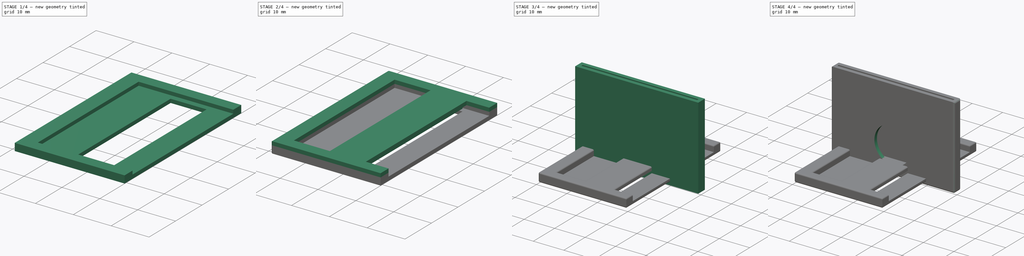
[diagram: build sequence overview — one tinted view per stage of 4, left to right]
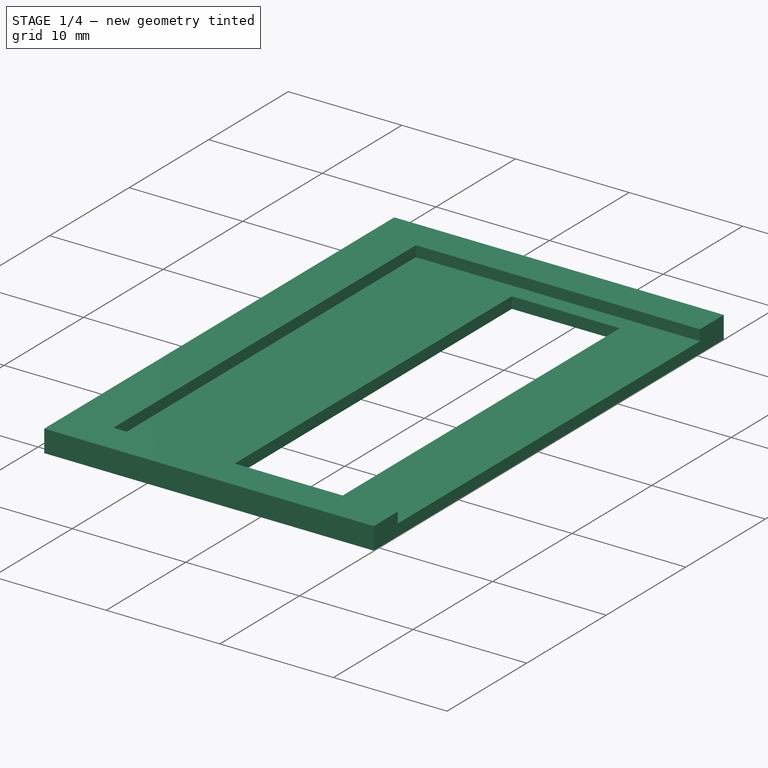
[diagram: stage 1 of 4 — iso view after this stage's code; geometry added in this stage tinted green]
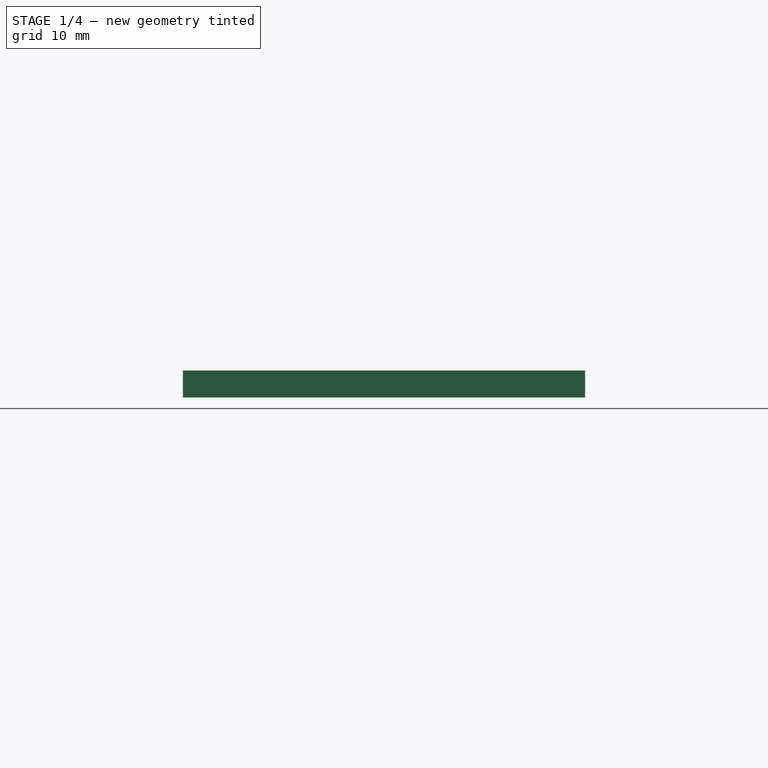
[diagram: stage 1 of 4 — front view after this stage's code; geometry added in this stage tinted green]
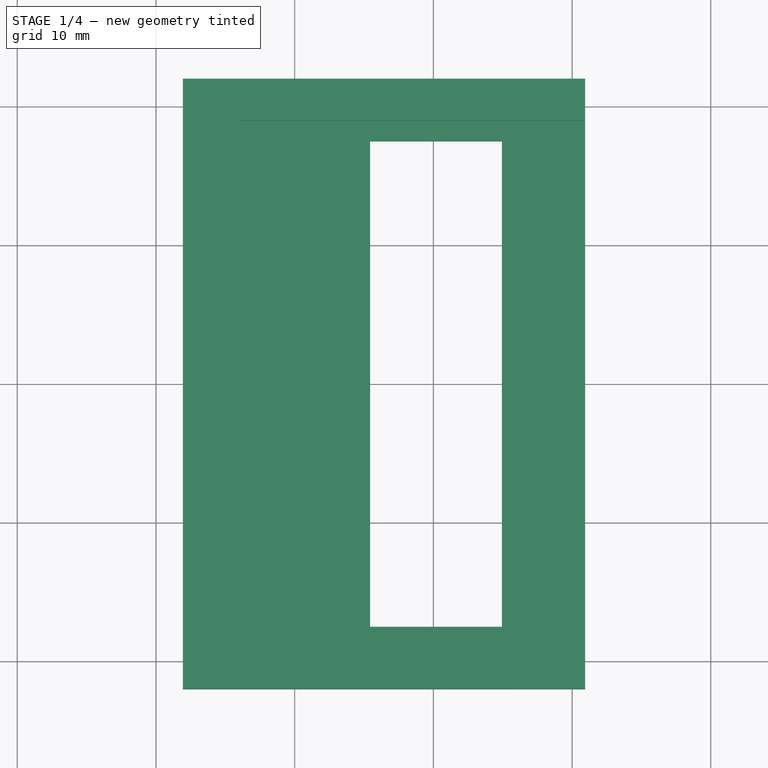
[diagram: stage 1 of 4 — top view after this stage's code; geometry added in this stage tinted green]
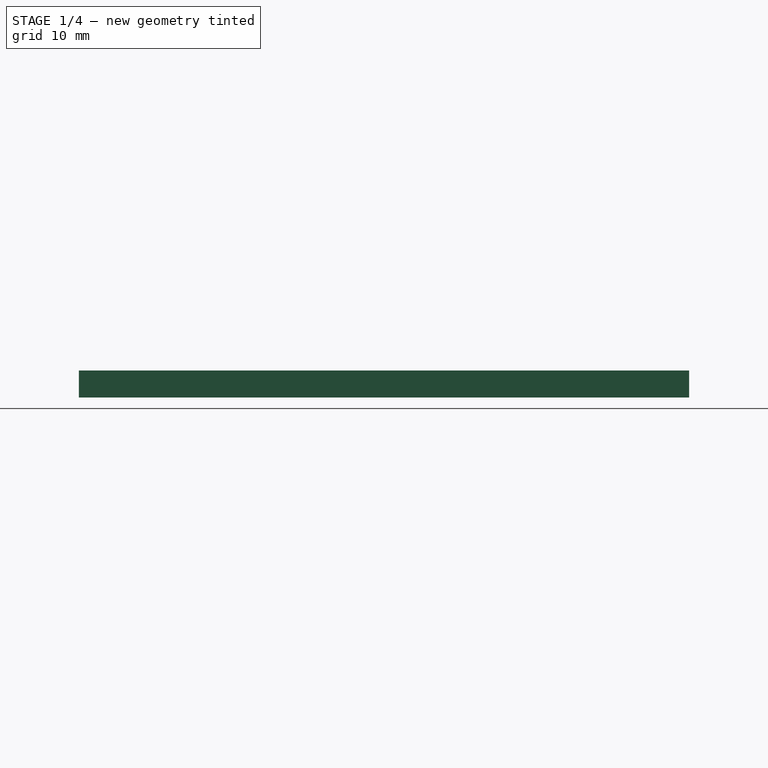
[diagram: stage 1 of 4 — right view after this stage's code; geometry added in this stage tinted green]
FCSTD DOCUMENT  (FreeCAD 0.20R27319 (Git))
Label: Chisel Protector
License: All rights reserved
LicenseURL: http://en.wikipedia.org/wiki/All_rights_reserved
objects: Sketcher::SketchObject×7, PartDesign::Pad×6, PartDesign::Fillet×3, PartDesign::Body×2, Spreadsheet::Sheet×1, PartDesign::Pocket×1
note: 29 computed .brp shape members not serialized (recipe doc carries the construction recipe); baked Part::Feature solids carry a one-line shape summary decoded from their .brp

FEATURE [Sketcher::SketchObject] Sketch001
  FullyConstrained = false
  MapMode = 5
  Support = -> [XY_Plane]
  expr: Constraints[23] = Spreadsheet.Width + 1
  expr: Constraints[24] = Spreadsheet.Width + 1 + 2 * 3
  sketch-geometry (10):
    g0: LineSegment StartX=-14.0603 StartY=19 StartZ=0 EndX=10.9397 EndY=19 EndZ=0
    g1: LineSegment StartX=10.9397 StartY=19 StartZ=0 EndX=10.9397 EndY=-19 EndZ=0
    g2: LineSegment StartX=10.9397 StartY=-19 StartZ=0 EndX=-14.0603 EndY=-19 EndZ=0
    g3: LineSegment StartX=-14.0603 StartY=-19 StartZ=0 EndX=-14.0603 EndY=19 EndZ=0
    g4: LineSegment StartX=-18.0603 StartY=22 StartZ=0 EndX=-18.0603 EndY=-22 EndZ=0
    g5: LineSegment StartX=-18.0603 StartY=-22 StartZ=0 EndX=10.9397 EndY=-22 EndZ=0
    g6: LineSegment StartX=10.9397 StartY=22 StartZ=0 EndX=-18.0603 EndY=22 EndZ=0
    g7: GeomPoint X=0 Y=0 Z=0
    g8: LineSegment StartX=10.9397 StartY=22 StartZ=0 EndX=10.9397 EndY=19 EndZ=0
    g9: LineSegment StartX=10.9397 StartY=-22 StartZ=0 EndX=10.9397 EndY=-19 EndZ=0
  constraints (26):
    c: Coincident(g0,g1)
    c: Coincident(g1,g2)
    c: Coincident(g2,g3)
    c: Coincident(g3,g0)
    c: Horizontal(g0)
    c: Horizontal(g2)
    c: Vertical(g1)
    c: Vertical(g3)
    c: Coincident(g4,g5)
    c: Coincident(g6,g4)
    c: Horizontal(g5)
    c: Horizontal(g6)
    c: Vertical(g4)
    c: Coincident(g7,g-1)
    c: PointOnObject(g6,g1)
    c: Symmetric(g6,g5,g-1)
    c: Coincident(g8,g6)
    c: Coincident(g8,g0)
    c: Coincident(g9,g5)
    c: Coincident(g9,g2)
    c: Equal(g8,g9)
    c: Distance(g0) = 25
    c: DistanceX(g4,g2) = 4
    c: DistanceY(g2,g0) = 38
    c: DistanceY(g5,g6) = 44
    c: Distance(g8) = 3
FEATURE [Spreadsheet::Sheet] Spreadsheet
  cells = A1=Width; B1(Width)=37; A2=Thickness; B2(Thickness)=0.7; B8=3.1; C8=4.8; B9=8.1; C9=3.3; D9=done; B10=12; C10=2.8; D10=done; B11=18; C11=3.6; D11=done; B12=38; C12=3.6; D12=done
FEATURE [PartDesign::Pad] Pad
  Direction = (0,0,1)
  Length = 0.95
  Length2 = 10
  Profile = -> Sketch001
  ReferenceAxis = -> Sketch001 [N_Axis]
  Type = 0
  expr: Length = Spreadsheet.Thickness + 0.25
FEATURE [Sketcher::SketchObject] Sketch003
  ExternalGeometry = -> [Pad]
  FullyConstrained = true
  MapMode = 5
  Placement = pos=(0,0,0) rot=(1,0,0;3.14159rad)
  Support = -> [Pad]
  expr: Constraints[18] = Spreadsheet.Width - 2
  sketch-geometry (8):
    g0: LineSegment StartX=10.9397 StartY=22 StartZ=0 EndX=-18.0603 EndY=22 EndZ=0
    g1: LineSegment StartX=-18.0603 StartY=22 StartZ=0 EndX=-18.0603 EndY=-22 EndZ=0
    g2: LineSegment StartX=-18.0603 StartY=-22 StartZ=0 EndX=10.9397 EndY=-22 EndZ=0
    g3: LineSegment StartX=10.9397 StartY=-22 StartZ=0 EndX=10.9397 EndY=22 EndZ=0
    g4: LineSegment StartX=-4.56026 StartY=17.5 StartZ=0 EndX=-4.56026 EndY=-17.5 EndZ=0
    g5: LineSegment StartX=4.93974 StartY=17.5 StartZ=0 EndX=4.93974 EndY=-17.5 EndZ=0
    g6: LineSegment StartX=-4.56026 StartY=17.5 StartZ=0 EndX=4.93974 EndY=17.5 EndZ=0
    g7: LineSegment StartX=-4.56026 StartY=-17.5 StartZ=0 EndX=4.93974 EndY=-17.5 EndZ=0
  constraints (21):
    c: Coincident(g1,g2)
    c: Coincident(g3,g0)
    c: Horizontal(g0)
    c: Horizontal(g2)
    c: Vertical(g1)
    c: Vertical(g3)
    c: Coincident(g0,g-3)
    c: Coincident(g1,g-4)
    c: Vertical(g5)
    c: Coincident(g2,g3)
    c: Coincident(g0,g1)
    c: Coincident(g4,g6)
    c: Coincident(g7,g4)
    c: Coincident(g6,g5)
    c: Coincident(g7,g5)
    c: Symmetric(g4,g4,g-1)
    c: Horizontal(g6)
    c: Horizontal(g7)
    c: Distance(g4) = 35
    c: Distance(g6) = 9.5
    c: DistanceX(g5,g0) = 6
FEATURE [PartDesign::Pad] Pad001
  BaseFeature = -> Pad
  Direction = (0,0,-1)
  Length = 1
  Length2 = 10
  Profile = -> Sketch003
  ReferenceAxis = -> Sketch003 [N_Axis]
  Type = 0
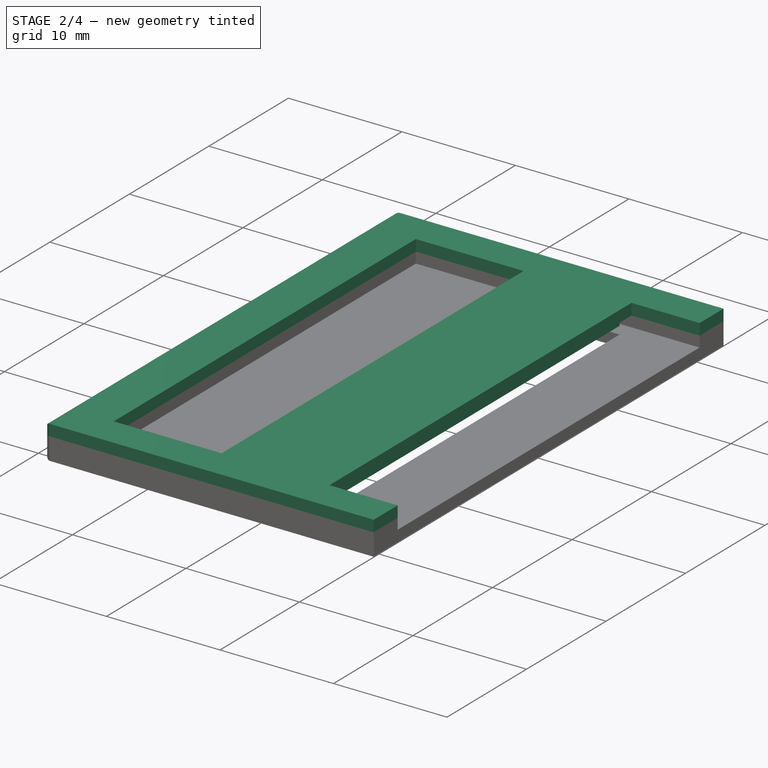
[diagram: stage 2 of 4 — iso view after this stage's code; geometry added in this stage tinted green]
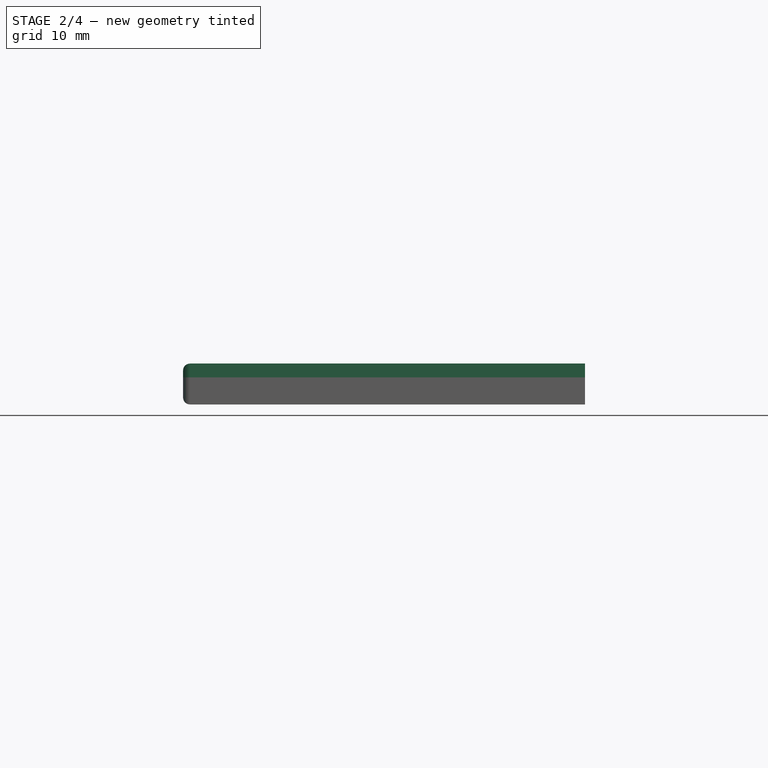
[diagram: stage 2 of 4 — front view after this stage's code; geometry added in this stage tinted green]
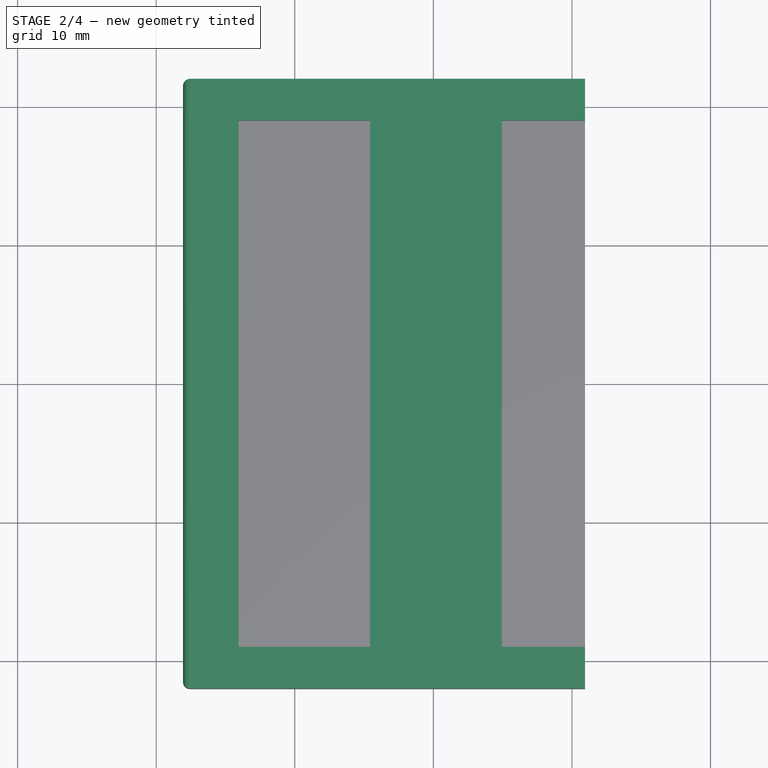
[diagram: stage 2 of 4 — top view after this stage's code; geometry added in this stage tinted green]
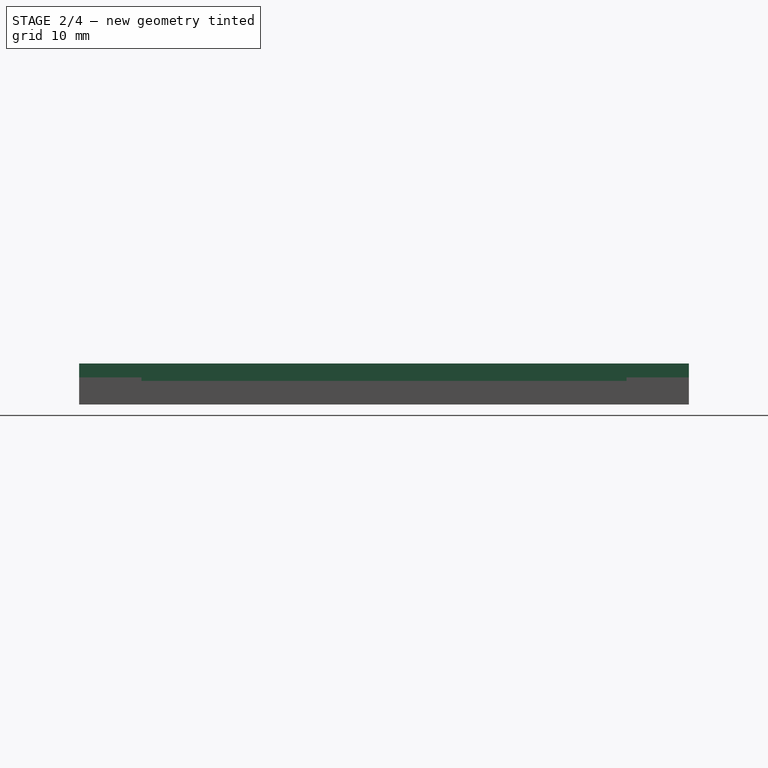
[diagram: stage 2 of 4 — right view after this stage's code; geometry added in this stage tinted green]
FEATURE [Sketcher::SketchObject] Sketch
  ExternalGeometry = -> [Pad001]
  FullyConstrained = true
  MapMode = 5
  Placement = pos=(0,0,0.95) rot=(0,0,1;0rad)
  Support = -> [Pad001]
  sketch-geometry (12):
    g0: LineSegment StartX=10.9397 StartY=19 StartZ=0 EndX=10.9397 EndY=22 EndZ=0
    g1: LineSegment StartX=-18.0603 StartY=22 StartZ=0 EndX=-18.0603 EndY=-22 EndZ=0
    g2: LineSegment StartX=10.9397 StartY=-22 StartZ=0 EndX=10.9397 EndY=-19 EndZ=0
    g3: LineSegment StartX=-14.0603 StartY=19 StartZ=0 EndX=-4.56026 EndY=19 EndZ=0
    g4: LineSegment StartX=-4.56026 StartY=19 StartZ=0 EndX=-4.56026 EndY=-19 EndZ=0
    g5: LineSegment StartX=-4.56026 StartY=-19 StartZ=0 EndX=-14.0603 EndY=-19 EndZ=0
    g6: LineSegment StartX=-14.0603 StartY=-19 StartZ=0 EndX=-14.0603 EndY=19 EndZ=0
    g7: LineSegment StartX=10.9397 StartY=19 StartZ=0 EndX=4.93974 EndY=19 EndZ=0
    g8: LineSegment StartX=4.93974 StartY=-19 StartZ=0 EndX=10.9397 EndY=-19 EndZ=0
    g9: LineSegment StartX=4.93974 StartY=-19 StartZ=0 EndX=4.93974 EndY=19 EndZ=0
    g10: LineSegment StartX=-18.0603 StartY=22 StartZ=0 EndX=10.9397 EndY=22 EndZ=0
    g11: LineSegment StartX=-18.0603 StartY=-22 StartZ=0 EndX=10.9397 EndY=-22 EndZ=0
  constraints (29):
    c: Coincident(g0,g-7)
    c: Coincident(g0,g-3)
    c: Coincident(g1,g-4)
    c: Coincident(g1,g-5)
    c: Coincident(g2,g-5)
    c: Coincident(g2,g-8)
    c: Coincident(g3,g4)
    c: Coincident(g4,g5)
    c: Coincident(g5,g6)
    c: Coincident(g6,g3)
    c: Horizontal(g3)
    c: Horizontal(g5)
    c: Vertical(g4)
    c: Vertical(g6)
    c: Coincident(g3,g-7)
    c: PointOnObject(g4,g-8)
    c: Coincident(g7,g0)
    c: PointOnObject(g7,g-7)
    c: PointOnObject(g8,g-8)
    c: Coincident(g8,g2)
    c: Coincident(g9,g8)
    c: Coincident(g9,g7)
    c: Vertical(g9)
    c: Coincident(g10,g1)
    c: Coincident(g10,g0)
    c: Coincident(g11,g1)
    c: Coincident(g11,g2)
    c: Vertical(g3,g-10)
    c: Vertical(g-9,g7)
FEATURE [PartDesign::Pad] Pad002
  BaseFeature = -> Pad001
  Direction = (0,0,1)
  Length = 1
  Length2 = 10
  Profile = -> Sketch
  ReferenceAxis = -> Sketch [N_Axis]
  Type = 0
FEATURE [Sketcher::SketchObject] Sketch004
  ExternalGeometry = -> [Pad002]
  FullyConstrained = true
  MapMode = 5
  Placement = pos=(0,0,0.95) rot=(1,0,0;3.14159rad)
  Support = -> [Pad002]
  sketch-geometry (4):
    g0: LineSegment StartX=-4.56026 StartY=17.5 StartZ=0 EndX=4.93974 EndY=17.5 EndZ=0
    g1: LineSegment StartX=4.93974 StartY=-17.5 StartZ=0 EndX=-4.56026 EndY=-17.5 EndZ=0
    g2: LineSegment StartX=-4.56026 StartY=-17.5 StartZ=0 EndX=-4.56026 EndY=17.5 EndZ=0
    g3: LineSegment StartX=4.93974 StartY=17.5 StartZ=0 EndX=4.93974 EndY=-17.5 EndZ=0
  constraints (9):
    c: Coincident(g1,g2)
    c: Coincident(g2,g0)
    c: Horizontal(g1)
    c: Vertical(g2)
    c: Coincident(g0,g-3)
    c: Coincident(g0,g-3)
    c: Symmetric(g0,g1,g-1)
    c: Coincident(g3,g0)
    c: Coincident(g3,g1)
FEATURE [PartDesign::Pad] Pad003
  BaseFeature = -> Pad002
  Direction = (0,0,-1)
  Length = 0.25
  Length2 = 10
  Profile = -> Sketch004
  ReferenceAxis = -> Sketch004 [N_Axis]
  Type = 0
FEATURE [PartDesign::Body] Body001  label="Protector V2"
  Group = -> [Sketch005,Pad004,Sketch006,Pad005,Sketch007,Pocket,Fillet]
  Origin = -> Origin001
  Tip = -> Fillet
FEATURE [PartDesign::Fillet] Fillet001
  Base = -> Pad003 [Face10,Face3,Face11]
  BaseFeature = -> Pad003
  Radius = 0.5
  SupportTransform = false
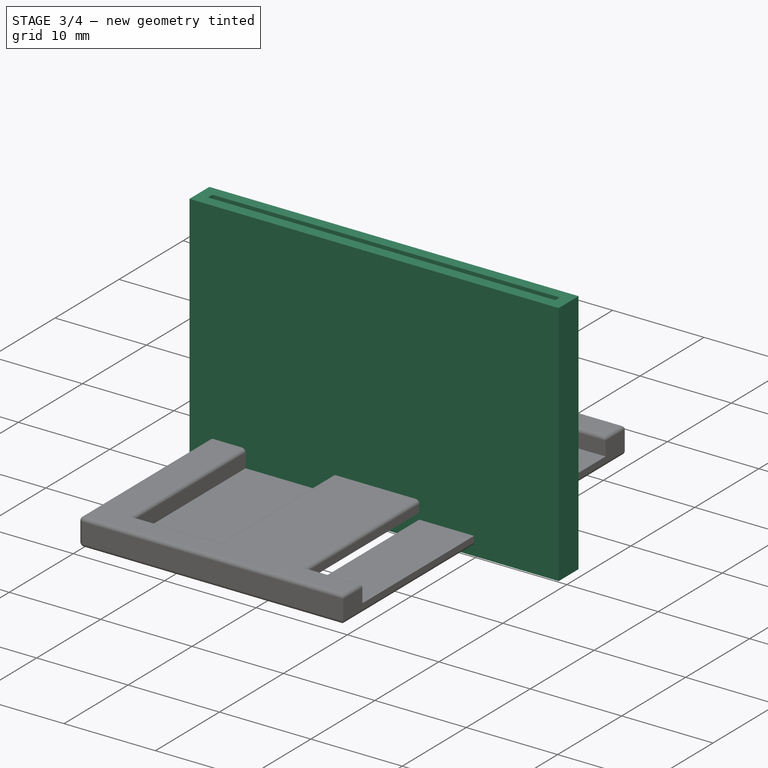
[diagram: stage 3 of 4 — iso view after this stage's code; geometry added in this stage tinted green]
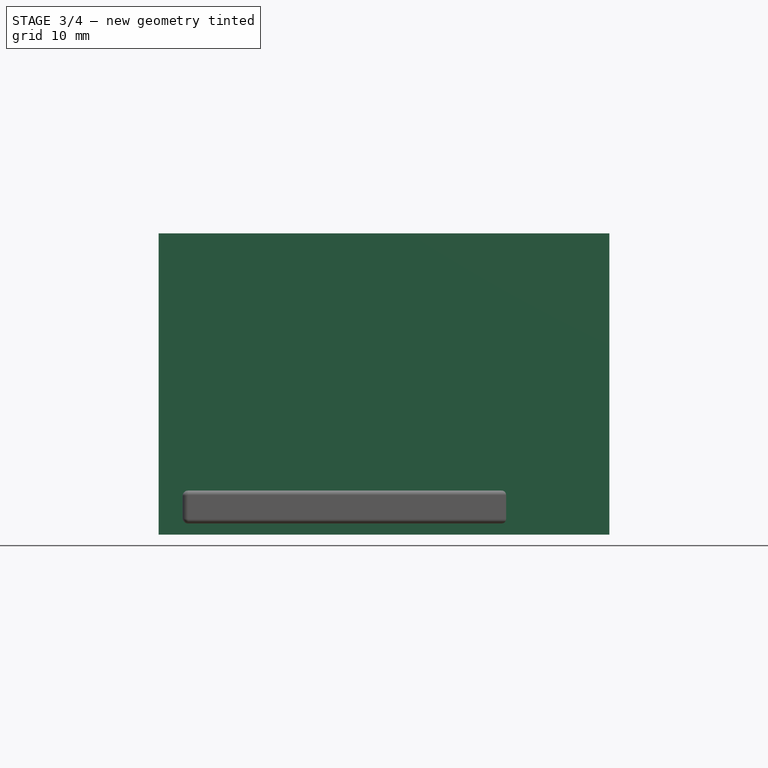
[diagram: stage 3 of 4 — front view after this stage's code; geometry added in this stage tinted green]
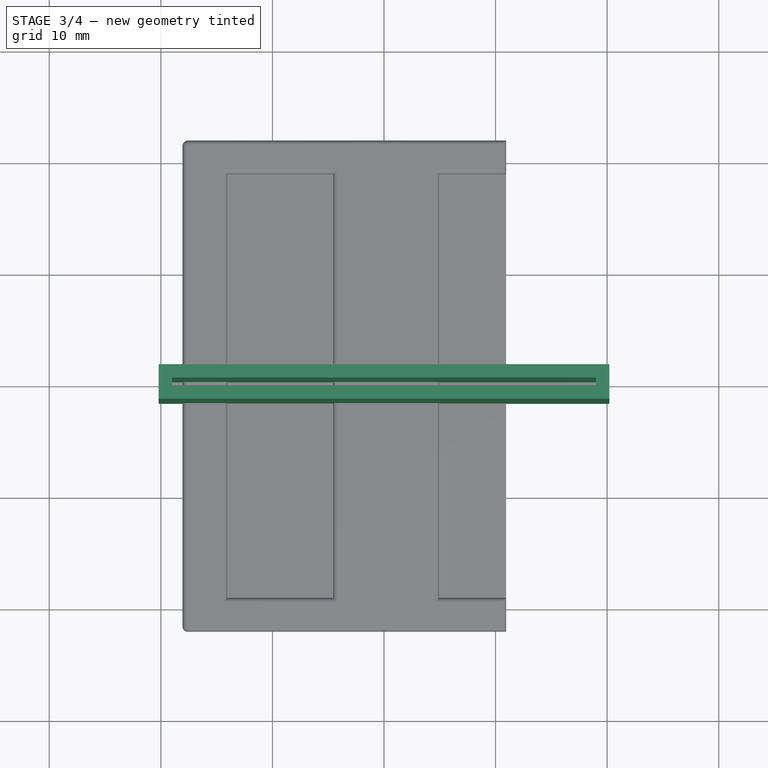
[diagram: stage 3 of 4 — top view after this stage's code; geometry added in this stage tinted green]
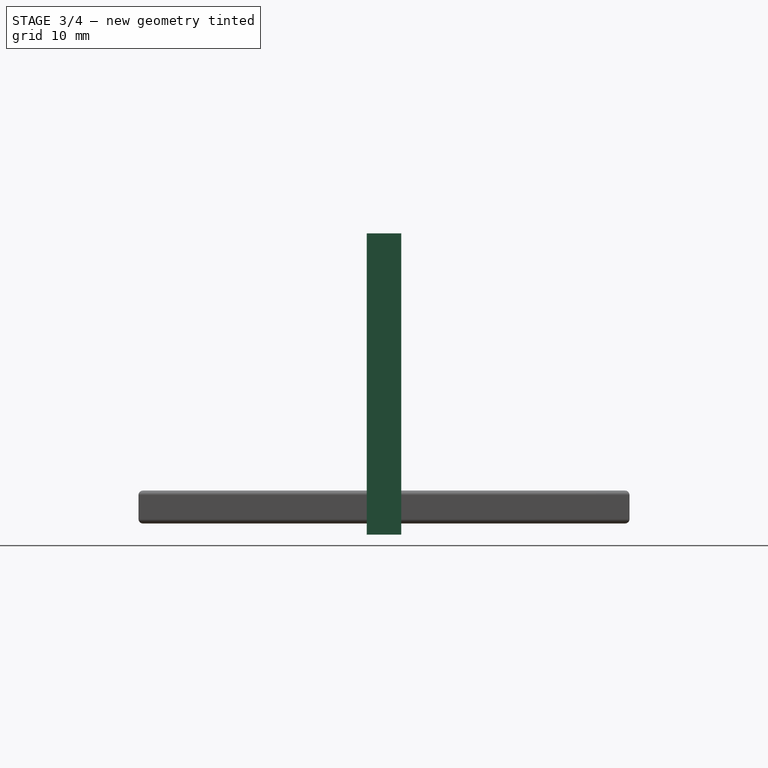
[diagram: stage 3 of 4 — right view after this stage's code; geometry added in this stage tinted green]
FEATURE [Sketcher::SketchObject] Sketch005
  FullyConstrained = true
  MapMode = 5
  Support = -> [XY_Plane001]
  expr: Constraints[10] = Spreadsheet.Thickness
  expr: Constraints[11] = Spreadsheet.Width + 1
  sketch-geometry (10):
    g0: LineSegment StartX=-19 StartY=0.35 StartZ=0 EndX=-19 EndY=-0.35 EndZ=0
    g1: LineSegment StartX=-19 StartY=-0.35 StartZ=0 EndX=19 EndY=-0.35 EndZ=0
    g2: LineSegment StartX=19 StartY=-0.35 StartZ=0 EndX=19 EndY=0.35 EndZ=0
    g3: LineSegment StartX=19 StartY=0.35 StartZ=0 EndX=-19 EndY=0.35 EndZ=0
    g4: GeomPoint X=0 Y=0 Z=0
    g5: LineSegment StartX=-20.2 StartY=1.55 StartZ=0 EndX=-20.2 EndY=-1.55 EndZ=0
    g6: LineSegment StartX=-20.2 StartY=-1.55 StartZ=0 EndX=20.2 EndY=-1.55 EndZ=0
    g7: LineSegment StartX=20.2 StartY=-1.55 StartZ=0 EndX=20.2 EndY=1.55 EndZ=0
    g8: LineSegment StartX=20.2 StartY=1.55 StartZ=0 EndX=-20.2 EndY=1.55 EndZ=0
    g9: GeomPoint X=0 Y=0 Z=0
  constraints (24):
    c: Coincident(g0,g1)
    c: Coincident(g1,g2)
    c: Coincident(g2,g3)
    c: Coincident(g3,g0)
    c: Horizontal(g1)
    c: Horizontal(g3)
    c: Vertical(g0)
    c: Vertical(g2)
    c: Symmetric(g1,g0,g4)
    c: Coincident(g4,g-1)
    c: Distance(g0) = 0.7
    c: Distance(g3) = 38
    c: Coincident(g5,g6)
    c: Coincident(g6,g7)
    c: Coincident(g7,g8)
    c: Coincident(g8,g5)
    c: Horizontal(g6)
    c: Horizontal(g8)
    c: Vertical(g5)
    c: Vertical(g7)
    c: Symmetric(g6,g5,g9)
    c: Coincident(g9,g4)
    c: DistanceY(g6,g1) = 1.2
    c: DistanceX(g1,g6) = 1.2
FEATURE [PartDesign::Pad] Pad004
  Direction = (0,0,1)
  Length = 25
  Length2 = 10
  Profile = -> Sketch005
  ReferenceAxis = -> Sketch005 [N_Axis]
  Type = 0
FEATURE [Sketcher::SketchObject] Sketch006
  ExternalGeometry = -> [Pad004]
  FullyConstrained = true
  MapMode = 5
  Placement = pos=(0,0,0) rot=(1,0,0;3.14159rad)
  Support = -> [Pad004]
  sketch-geometry (4):
    g0: LineSegment StartX=-20.2 StartY=1.55 StartZ=0 EndX=20.2 EndY=1.55 EndZ=0
    g1: LineSegment StartX=20.2 StartY=1.55 StartZ=0 EndX=20.2 EndY=-1.55 EndZ=0
    g2: LineSegment StartX=20.2 StartY=-1.55 StartZ=0 EndX=-20.2 EndY=-1.55 EndZ=0
    g3: LineSegment StartX=-20.2 StartY=-1.55 StartZ=0 EndX=-20.2 EndY=1.55 EndZ=0
  constraints (10):
    c: Coincident(g0,g1)
    c: Coincident(g1,g2)
    c: Coincident(g2,g3)
    c: Coincident(g3,g0)
    c: Horizontal(g0)
    c: Horizontal(g2)
    c: Vertical(g1)
    c: Vertical(g3)
    c: Coincident(g0,g-3)
    c: Coincident(g1,g-4)
FEATURE [PartDesign::Pad] Pad005
  BaseFeature = -> Pad004
  Direction = (0,0,-1)
  Length = 2
  Length2 = 10
  Profile = -> Sketch006
  ReferenceAxis = -> Sketch006 [N_Axis]
  Type = 0
FEATURE [PartDesign::Fillet] Fillet002
  Base = -> Fillet001 [Face13,Face8]
  BaseFeature = -> Fillet001
  Radius = 0.4
  SupportTransform = false
FEATURE [PartDesign::Body] Body  label="Protector V1"
  Group = -> [Sketch001,Pad,Sketch003,Pad001,Sketch,Pad002,Sketch004,Pad003,Fillet001,Fillet002]
  Origin = -> Origin
  Tip = -> Fillet002
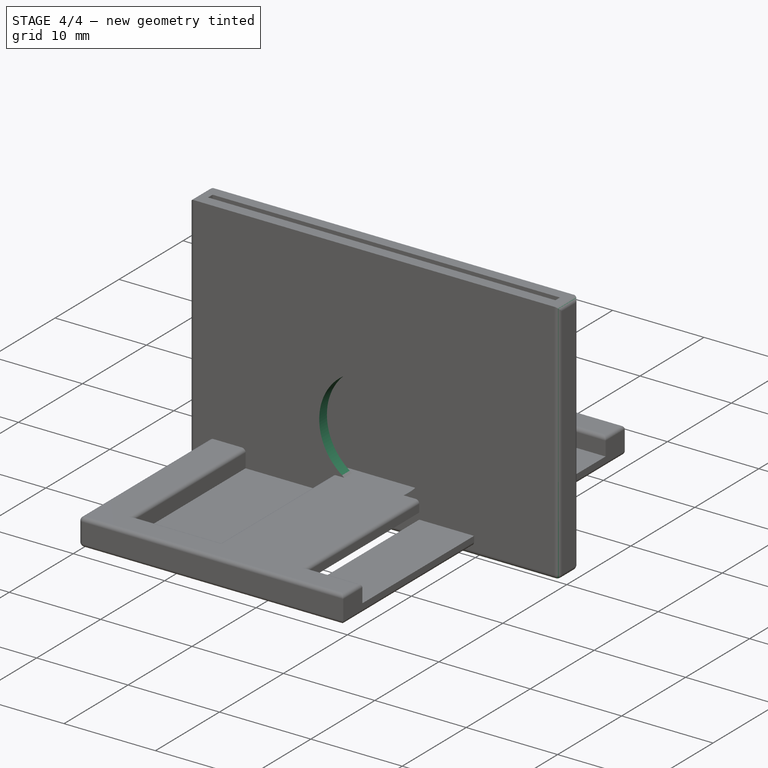
[diagram: stage 4 of 4 — iso view after this stage's code; geometry added in this stage tinted green]
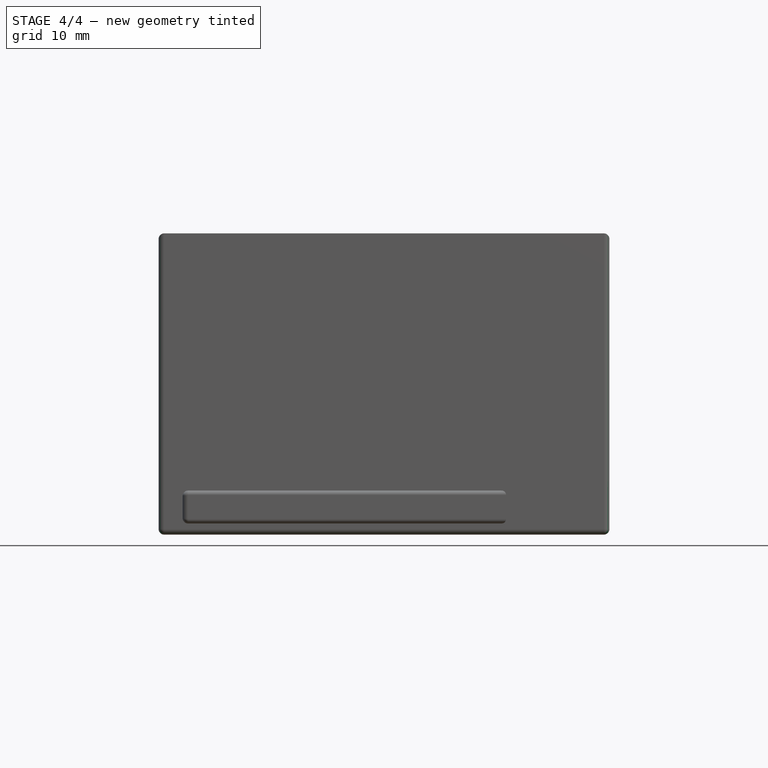
[diagram: stage 4 of 4 — front view after this stage's code; geometry added in this stage tinted green]
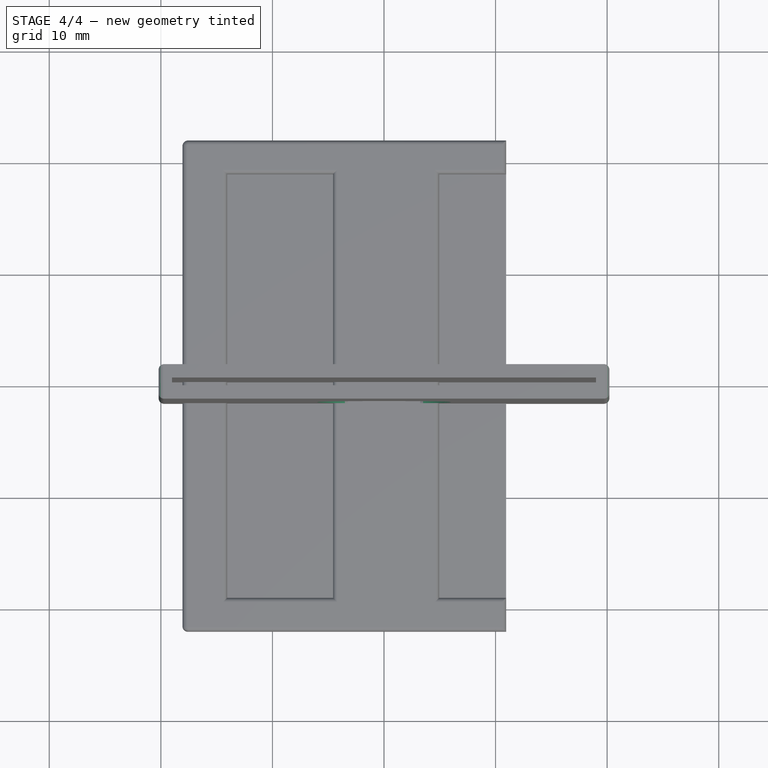
[diagram: stage 4 of 4 — top view after this stage's code; geometry added in this stage tinted green]
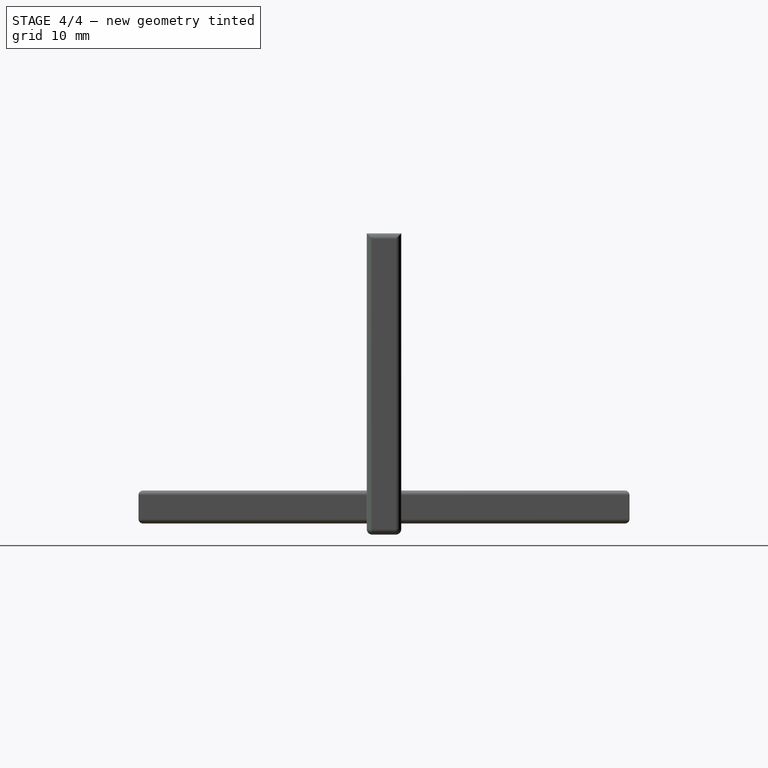
[diagram: stage 4 of 4 — right view after this stage's code; geometry added in this stage tinted green]
FEATURE [Sketcher::SketchObject] Sketch007
  FullyConstrained = true
  MapMode = 5
  Placement = pos=(0,-1.55,0) rot=(1,0,0;1.5708rad)
  Support = -> [Pad005]
  expr: Constraints[1] = min(Spreadsheet.Width * 0.7; 12)
  sketch-geometry (2):
    g0: Circle CenterX=0 CenterY=7 CenterZ=0 NormalX=0 NormalY=0 NormalZ=1 AngleXU=0 Radius=6
    g1: GeomPoint X=0 Y=1 Z=0
  constraints (5):
    c: PointOnObject(g0,g-2)
    c: Diameter(g0) = 12
    c: PointOnObject(g1,g0)
    c: PointOnObject(g1,g-2)
    c: DistanceY(g-1,g1) = 1
FEATURE [PartDesign::Pocket] Pocket
  BaseFeature = -> Pad005
  Direction = (0,1,-2e-16)
  Length = 5
  Length2 = 5
  Profile = -> Sketch007
  ReferenceAxis = -> Sketch007 [N_Axis]
  Type = 2
FEATURE [PartDesign::Fillet] Fillet
  Base = -> Pocket [Face1,Face4,Face6,Face15,Face10]
  BaseFeature = -> Pocket
  Radius = 0.5
  SupportTransform = false
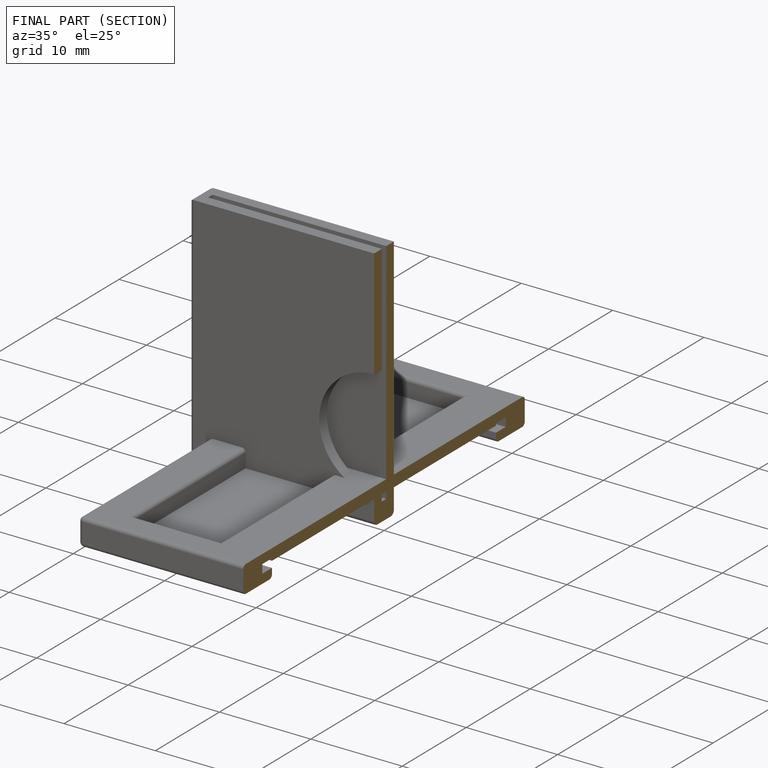
[diagram: finished part — half-section view (interior)]
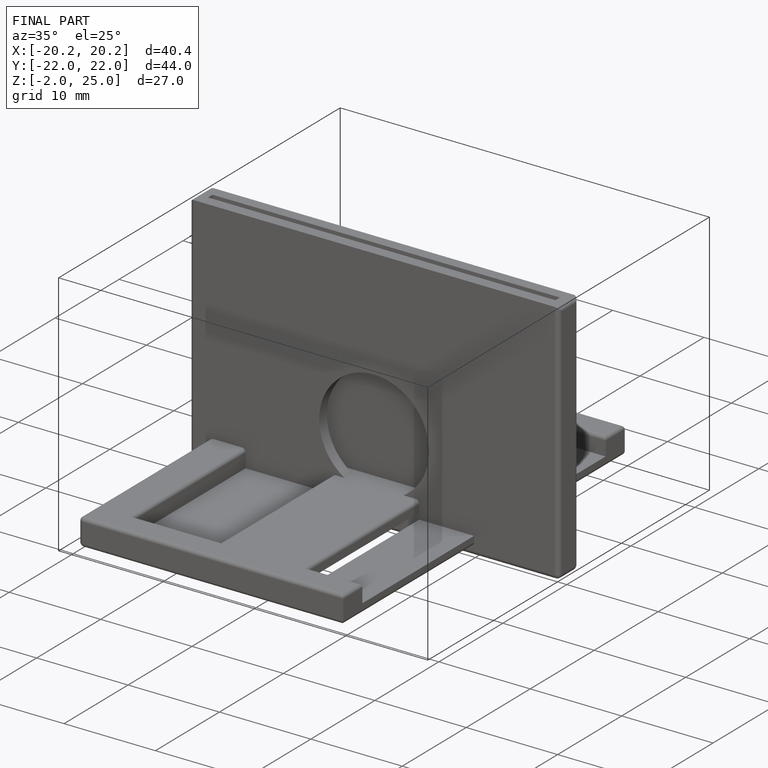
[diagram: finished part — iso view with bounding-box wireframe]
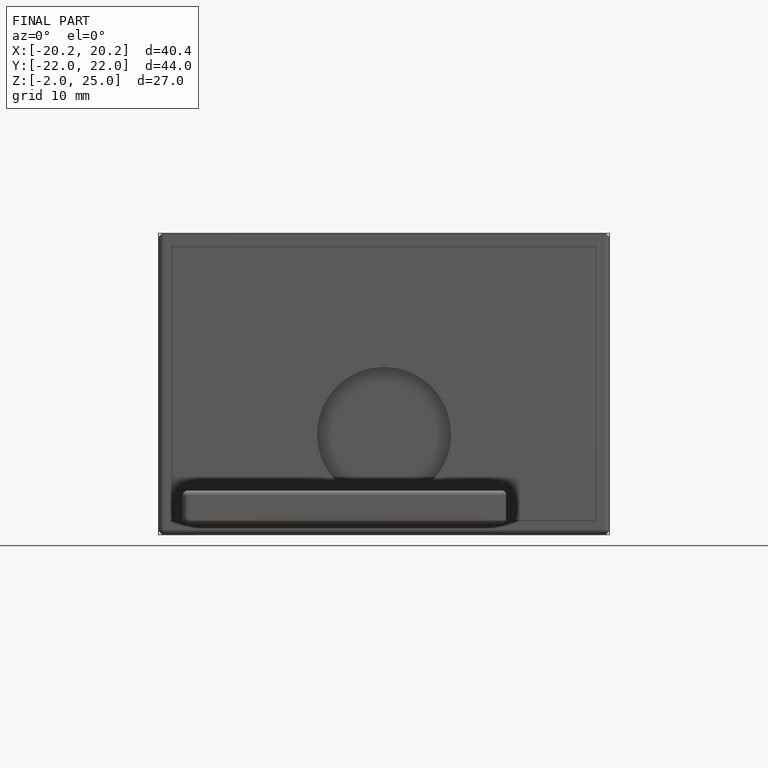
[diagram: finished part — front view with bounding-box wireframe]
